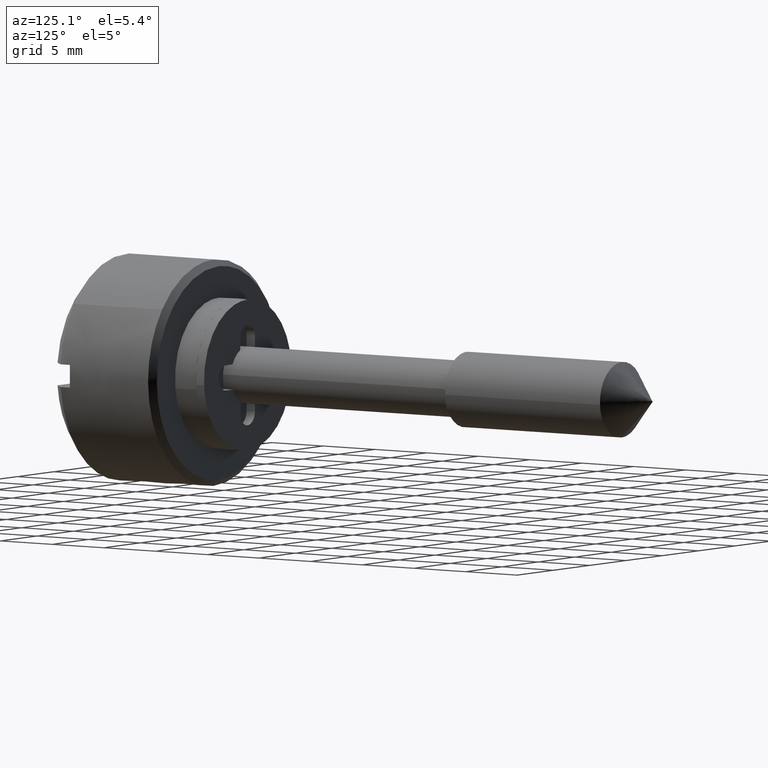
[diagram: clean part render]
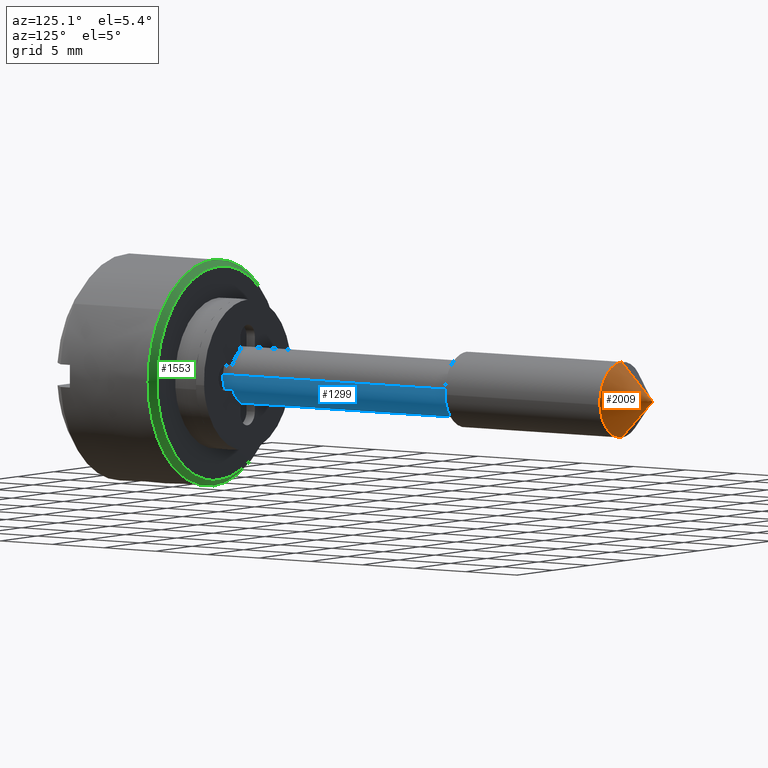
[diagram: same view with three faces highlighted in distinct colors, each labeled with its STEP entity id]
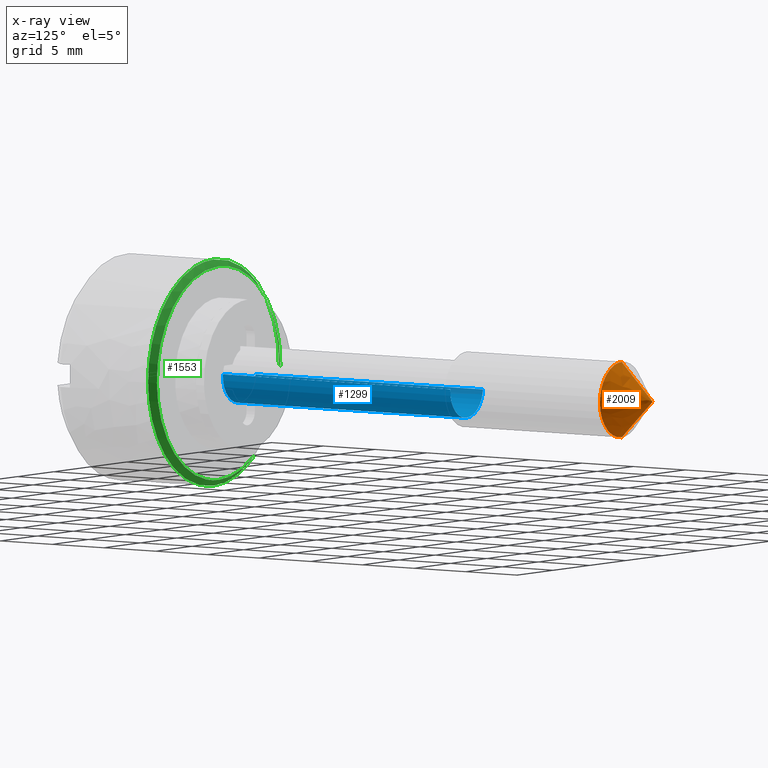
[diagram: x-ray of the same camera — body ghosted, the three highlighted faces saturated]
A machine part, auxiliary view with three faces highlighted in distinct colors.
The next image is the same camera in x-ray (body ghosted, the three faces saturated) — at least one of them is partly hidden behind the body in this view.
Their STEP definitions:

[orange] entity #2009 — the highlighted face is a freeform B-spline surface patch.
#1039=CARTESIAN_POINT('',(37.000000000000043,0.0,-3.000000000000032));
#1040=VERTEX_POINT('',#1039);
#1056=CARTESIAN_POINT('',(37.0,-2.994404395263399,-0.183145618640563));
#1057=VERTEX_POINT('',#1056);
#1058=CARTESIAN_POINT('',(37.0,0.0,-3.0));
#1059=CARTESIAN_POINT('',(37.000000000000007,-2.822118200649117,-3.000000000000000));
#1060=CARTESIAN_POINT('',(37.0,-2.994404395263400,-0.183145618640563));
#1068=(BOUNDED_CURVE()B_SPLINE_CURVE(2,(#1058,#1059,#1060),.UNSPECIFIED.,.F.,.U.)B_SPLINE_CURVE_WITH_KNOTS((3,3),(0.0,0.478665924475641),.UNSPECIFIED.)CURVE()GEOMETRIC_REPRESENTATION_ITEM()RATIONAL_B_SPLINE_CURVE((1.0,0.719603993288025,0.976072041664312))REPRESENTATION_ITEM(''));
#1069=EDGE_CURVE('',#1040,#1057,#1068,.T.);
#1136=CARTESIAN_POINT('',(37.000000000000043,0.0,3.000000000000032));
#1137=VERTEX_POINT('',#1136);
#1183=CARTESIAN_POINT('',(37.0,-2.994404395263399,-0.183145618640563));
#1184=CARTESIAN_POINT('',(36.999999999999993,-3.000000000000000,-0.091658289931860));
#1185=CARTESIAN_POINT('',(37.0,-3.0,0.0));
#1186=CARTESIAN_POINT('',(37.0,-3.0,3.0));
#1187=CARTESIAN_POINT('',(37.0,0.0,3.0));
#1195=(BOUNDED_CURVE()B_SPLINE_CURVE(2,(#1183,#1184,#1185,#1186,#1187),.UNSPECIFIED.,.F.,.U.)B_SPLINE_CURVE_WITH_KNOTS((3,2,3),(0.478665924475641,0.500000000000000,1.0),.UNSPECIFIED.)CURVE()GEOMETRIC_REPRESENTATION_ITEM()RATIONAL_B_SPLINE_CURVE((0.976072041664312,0.987502787898522,1.0,0.707106781186548,1.0))REPRESENTATION_ITEM(''));
#1196=EDGE_CURVE('',#1057,#1137,#1195,.T.);
#1975=CARTESIAN_POINT('',(40.0,0.0,0.0));
#1976=CARTESIAN_POINT('',(36.923124999999992,0.080543197824797,3.075820631784373));
#1977=CARTESIAN_POINT('',(40.0,0.0,0.0));
#1978=CARTESIAN_POINT('',(36.923124999999999,-3.160695452878708,3.160695452878717));
#1979=CARTESIAN_POINT('',(40.0,0.0,0.0));
#1980=CARTESIAN_POINT('',(36.923124999999992,-3.075820631784374,-0.080543197824788));
#1981=CARTESIAN_POINT('',(40.0,0.0,0.0));
#1982=CARTESIAN_POINT('',(36.923124999999999,-2.990945810690039,-3.321781848528294));
#1983=CARTESIAN_POINT('',(40.0,0.0,0.0));
#1984=CARTESIAN_POINT('',(36.923124999999992,0.241408830167624,-3.067390021230324));
#1992=(BOUNDED_SURFACE()B_SPLINE_SURFACE(1,2,((#1975,#1977,#1979,#1981,#1983),(#1976,#1978,#1980,#1982,#1984)),.UNSPECIFIED.,.F.,.F.,.U.)B_SPLINE_SURFACE_WITH_KNOTS((2,2),(3,2,3),(0.0,1.0),(0.0,1.0,2.0),.UNSPECIFIED.)GEOMETRIC_REPRESENTATION_ITEM()RATIONAL_B_SPLINE_SURFACE(((1.0,0.688354575693754,1.0,0.688354575693754,1.0),(1.0,0.688354575693754,1.0,0.688354575693754,1.0)))REPRESENTATION_ITEM('')SURFACE());
#1993=CARTESIAN_POINT('',(40.0,0.0,0.0));
#1994=VERTEX_POINT('',#1993);
#1995=CARTESIAN_POINT('',(40.0,0.0,0.0));
#1996=CARTESIAN_POINT('',(37.000000000000043,0.0,3.000000000000032));
#1997=QUASI_UNIFORM_CURVE('',1,(#1995,#1996),.UNSPECIFIED.,.F.,.U.);
#1998=EDGE_CURVE('',#1994,#1137,#1997,.T.);
#1999=ORIENTED_EDGE('',*,*,#1998,.T.);
#2000=ORIENTED_EDGE('',*,*,#1196,.F.);
#2001=ORIENTED_EDGE('',*,*,#1069,.F.);
#2002=CARTESIAN_POINT('',(40.0,0.0,0.0));
#2003=CARTESIAN_POINT('',(37.000000000000043,0.0,-3.000000000000032));
#2004=QUASI_UNIFORM_CURVE('',1,(#2002,#2003),.UNSPECIFIED.,.F.,.U.);
#2005=EDGE_CURVE('',#1994,#1040,#2004,.T.);
#2006=ORIENTED_EDGE('',*,*,#2005,.F.);
#2007=EDGE_LOOP('',(#1999,#2000,#2001,#2006));
#2008=FACE_OUTER_BOUND('',#2007,.T.);
#2009=ADVANCED_FACE('',(#2008),#1992,.T.);

[blue] entity #1299 — the highlighted face is a freeform B-spline surface patch.
#1201=CARTESIAN_POINT('',(22.550000000000001,2.243064000899537,-0.176532965387653));
#1202=CARTESIAN_POINT('',(22.550000000000004,2.066531035511885,-2.419596966287189));
#1203=CARTESIAN_POINT('',(22.550000000000001,-0.176532965387653,-2.243064000899537));
#1204=CARTESIAN_POINT('',(22.550000000000004,-2.419596966287189,-2.066531035511885));
#1205=CARTESIAN_POINT('',(22.550000000000001,-2.243064000899537,0.176532965387653));
#1206=CARTESIAN_POINT('',(-0.563749999999999,2.243064000899537,-0.176532965387653));
#1207=CARTESIAN_POINT('',(-0.563749999999999,2.066531035511885,-2.419596966287189));
#1208=CARTESIAN_POINT('',(-0.563749999999999,-0.176532965387653,-2.243064000899537));
#1209=CARTESIAN_POINT('',(-0.563749999999999,-2.419596966287189,-2.066531035511885));
#1210=CARTESIAN_POINT('',(-0.563749999999999,-2.243064000899537,0.176532965387653));
#1218=(BOUNDED_SURFACE()B_SPLINE_SURFACE(2,1,((#1201,#1206),(#1202,#1207),(#1203,#1208),(#1204,#1209),(#1205,#1210)),.UNSPECIFIED.,.F.,.F.,.U.)B_SPLINE_SURFACE_WITH_KNOTS((3,2,3),(2,2),(0.0,3.727922061357853,7.455844122715707),(0.0,23.113750000000000),.UNSPECIFIED.)GEOMETRIC_REPRESENTATION_ITEM()RATIONAL_B_SPLINE_SURFACE(((1.0,1.0),(0.707106781186548,0.707106781186548),(1.0,1.0),(0.707106781186548,0.707106781186548),(1.0,1.0)))REPRESENTATION_ITEM('')SURFACE());
#1219=CARTESIAN_POINT('',(22.0,0.0,-2.250000000000000));
#1220=VERTEX_POINT('',#1219);
#1221=CARTESIAN_POINT('',(22.0,2.243064000891777,-0.176532965486256));
#1222=VERTEX_POINT('',#1221);
#1223=CARTESIAN_POINT('',(22.0,0.0,-2.250000000000000));
#1224=CARTESIAN_POINT('',(22.0,2.079878606047539,-2.250000000000000));
#1225=CARTESIAN_POINT('',(22.0,2.243064000891776,-0.176532965486256));
#1233=(BOUNDED_CURVE()B_SPLINE_CURVE(2,(#1223,#1224,#1225),.UNSPECIFIED.,.F.,.U.)B_SPLINE_CURVE_WITH_KNOTS((3,3),(0.0,0.236331300617695),.UNSPECIFIED.)CURVE()GEOMETRIC_REPRESENTATION_ITEM()RATIONAL_B_SPLINE_CURVE((1.0,0.723120658622854,0.969723356140362))REPRESENTATION_ITEM(''));
#1234=EDGE_CURVE('',#1220,#1222,#1233,.T.);
#1235=ORIENTED_EDGE('',*,*,#1234,.F.);
#1236=CARTESIAN_POINT('',(22.0,-2.243064000891777,0.176532965486256));
#1237=VERTEX_POINT('',#1236);
#1238=CARTESIAN_POINT('',(22.0,-2.243064000891776,0.176532965486256));
#1239=CARTESIAN_POINT('',(21.999999999999996,-2.250000000000000,0.088402740866319));
#1240=CARTESIAN_POINT('',(22.0,-2.250000000000000,0.0));
#1241=CARTESIAN_POINT('',(21.999999999999993,-2.250000000000000,-2.250000000000000));
#1242=CARTESIAN_POINT('',(22.0,0.0,-2.250000000000000));
#1250=(BOUNDED_CURVE()B_SPLINE_CURVE(2,(#1238,#1239,#1240,#1241,#1242),.UNSPECIFIED.,.F.,.U.)B_SPLINE_CURVE_WITH_KNOTS((3,2,3),(0.736331300617695,0.750000000000000,1.0),.UNSPECIFIED.)CURVE()GEOMETRIC_REPRESENTATION_ITEM()RATIONAL_B_SPLINE_CURVE((0.969723356140362,0.983986122563693,1.0,0.707106781186547,1.0))REPRESENTATION_ITEM(''));
#1251=EDGE_CURVE('',#1237,#1220,#1250,.T.);
#1252=ORIENTED_EDGE('',*,*,#1251,.F.);
#1253=CARTESIAN_POINT('',(-4.440892E-016,-2.243064000891777,0.176532965486256));
#1254=VERTEX_POINT('',#1253);
#1255=CARTESIAN_POINT('',(22.0,-2.243064000891777,0.176532965486256));
#1256=CARTESIAN_POINT('',(-4.440892E-016,-2.243064000891777,0.176532965486256));
#1257=QUASI_UNIFORM_CURVE('',1,(#1255,#1256),.UNSPECIFIED.,.F.,.U.);
#1258=EDGE_CURVE('',#1237,#1254,#1257,.T.);
#1259=ORIENTED_EDGE('',*,*,#1258,.T.);
#1260=CARTESIAN_POINT('',(0.0,0.0,-2.250000000000000));
#1261=VERTEX_POINT('',#1260);
#1262=CARTESIAN_POINT('',(-4.440892E-016,-2.243064000891776,0.176532965486256));
#1263=CARTESIAN_POINT('',(0.0,-2.250000000000000,0.088402740866319));
#1264=CARTESIAN_POINT('',(0.0,-2.250000000000000,0.0));
#1265=CARTESIAN_POINT('',(0.0,-2.250000000000000,-2.250000000000000));
#1266=CARTESIAN_POINT('',(0.0,0.0,-2.250000000000000));
#1274=(BOUNDED_CURVE()B_SPLINE_CURVE(2,(#1262,#1263,#1264,#1265,#1266),.UNSPECIFIED.,.F.,.U.)B_SPLINE_CURVE_WITH_KNOTS((3,2,3),(0.736331300617695,0.750000000000000,1.0),.UNSPECIFIED.)CURVE()GEOMETRIC_REPRESENTATION_ITEM()RATIONAL_B_SPLINE_CURVE((0.969723356140362,0.983986122563693,1.0,0.707106781186547,1.0))REPRESENTATION_ITEM(''));
#1275=EDGE_CURVE('',#1254,#1261,#1274,.T.);
#1276=ORIENTED_EDGE('',*,*,#1275,.T.);
#1277=CARTESIAN_POINT('',(-4.440892E-016,2.243064000891777,-0.176532965486256));
#1278=VERTEX_POINT('',#1277);
#1279=CARTESIAN_POINT('',(0.0,0.0,-2.250000000000000));
#1280=CARTESIAN_POINT('',(0.0,2.079878606047539,-2.250000000000000));
#1281=CARTESIAN_POINT('',(-4.440892E-016,2.243064000891776,-0.176532965486256));
#1289=(BOUNDED_CURVE()B_SPLINE_CURVE(2,(#1279,#1280,#1281),.UNSPECIFIED.,.F.,.U.)B_SPLINE_CURVE_WITH_KNOTS((3,3),(0.0,0.236331300617695),.UNSPECIFIED.)CURVE()GEOMETRIC_REPRESENTATION_ITEM()RATIONAL_B_SPLINE_CURVE((1.0,0.723120658622854,0.969723356140362))REPRESENTATION_ITEM(''));
#1290=EDGE_CURVE('',#1261,#1278,#1289,.T.);
#1291=ORIENTED_EDGE('',*,*,#1290,.T.);
#1292=CARTESIAN_POINT('',(22.0,2.243064000891777,-0.176532965486256));
#1293=CARTESIAN_POINT('',(-4.440892E-016,2.243064000891777,-0.176532965486256));
#1294=QUASI_UNIFORM_CURVE('',1,(#1292,#1293),.UNSPECIFIED.,.F.,.U.);
#1295=EDGE_CURVE('',#1222,#1278,#1294,.T.);
#1296=ORIENTED_EDGE('',*,*,#1295,.F.);
#1297=EDGE_LOOP('',(#1235,#1252,#1259,#1276,#1291,#1296));
#1298=FACE_OUTER_BOUND('',#1297,.T.);
#1299=ADVANCED_FACE('',(#1298),#1218,.T.);

[green] entity #1553 — the highlighted face is a freeform B-spline surface patch.
#1383=CARTESIAN_POINT('',(-1.987500000000001,4.871694058989064,-6.950126131633201));
#1384=CARTESIAN_POINT('',(-1.987500000000001,2.645031824215980,-8.510906033331226));
#1385=CARTESIAN_POINT('',(-1.987500000000001,-0.074066470042448,-8.487176822007154));
#1386=CARTESIAN_POINT('',(-1.987500000000001,-8.561243292049602,-8.413110351964706));
#1387=CARTESIAN_POINT('',(-1.987500000000001,-8.487176822007154,0.074066470042448));
#1388=CARTESIAN_POINT('',(-1.987500000000001,-8.413110351964706,8.561243292049602));
#1389=CARTESIAN_POINT('',(-1.987500000000001,0.074066470042448,8.487176822007154));
#1390=CARTESIAN_POINT('',(-1.987500000000001,8.561243292049602,8.413110351964706));
#1391=CARTESIAN_POINT('',(-1.987500000000001,8.487176822007154,-0.074066470042448));
#1392=CARTESIAN_POINT('',(-2.512812499999944,5.173215329723990,-7.380286736466609));
#1393=CARTESIAN_POINT('',(-2.512812499999944,2.808739427180158,-9.037667190990643));
#1394=CARTESIAN_POINT('',(-2.512812499999944,-0.078650628221438,-9.012469319716800));
#1395=CARTESIAN_POINT('',(-2.512812499999944,-9.091119947938237,-8.933818691495363));
#1396=CARTESIAN_POINT('',(-2.512812499999944,-9.012469319716800,0.078650628221438));
#1397=CARTESIAN_POINT('',(-2.512812499999944,-8.933818691495363,9.091119947938237));
#1398=CARTESIAN_POINT('',(-2.512812499999944,0.078650628221438,9.012469319716800));
#1399=CARTESIAN_POINT('',(-2.512812499999944,9.091119947938237,8.933818691495363));
#1400=CARTESIAN_POINT('',(-2.512812499999944,9.012469319716800,-0.078650628221438));
#1408=(BOUNDED_SURFACE()B_SPLINE_SURFACE(2,1,((#1383,#1392),(#1384,#1393),(#1385,#1394),(#1386,#1395),(#1387,#1396),(#1388,#1397),(#1389,#1398),(#1390,#1399),(#1391,#1400)),.UNSPECIFIED.,.F.,.F.,.U.)B_SPLINE_SURFACE_WITH_KNOTS((3,2,2,2,3),(2,2),(0.0,5.973166676201216,20.906083366704259,35.839000057207294,50.771916747710343),(0.0,1.0),.UNSPECIFIED.)GEOMETRIC_REPRESENTATION_ITEM()RATIONAL_B_SPLINE_SURFACE(((0.859411254969543,0.859411254969543),(0.882842712474619,0.882842712474619),(1.0,1.0),(0.707106781186548,0.707106781186548),(1.0,1.0),(0.707106781186548,0.707106781186548),(1.0,1.0),(0.707106781186548,0.707106781186548),(1.0,1.0)))REPRESENTATION_ITEM('')SURFACE());
#1409=CARTESIAN_POINT('',(-2.500000000001037,5.165861152410700,-7.369795014383618));
#1410=VERTEX_POINT('',#1409);
#1411=CARTESIAN_POINT('',(-2.499999999999945,0.0,-9.0));
#1412=VERTEX_POINT('',#1411);
#1413=CARTESIAN_POINT('',(-2.500000000001037,5.165861152410700,-7.369795014383618));
#1414=CARTESIAN_POINT('',(-2.499999999999945,2.840154707561898,-9.000000000000002));
#1415=CARTESIAN_POINT('',(-2.499999999999945,0.0,-9.0));
#1423=(BOUNDED_CURVE()B_SPLINE_CURVE(2,(#1413,#1414,#1415),.UNSPECIFIED.,.F.,.U.)B_SPLINE_CURVE_WITH_KNOTS((3,3),(0.901326273796258,1.0),.UNSPECIFIED.)CURVE()GEOMETRIC_REPRESENTATION_ITEM()RATIONAL_B_SPLINE_CURVE((0.860049271925442,0.884396538879475,1.0))REPRESENTATION_ITEM(''));
#1424=EDGE_CURVE('',#1410,#1412,#1423,.T.);
#1425=ORIENTED_EDGE('',*,*,#1424,.F.);
#1426=CARTESIAN_POINT('',(-2.000000000001049,4.878868866166076,-6.960361958028705));
#1427=VERTEX_POINT('',#1426);
#1428=CARTESIAN_POINT('',(-2.000000000001049,4.878868866166076,-6.960361958028705));
#1429=CARTESIAN_POINT('',(-2.500000000001037,5.165861152410700,-7.369795014383618));
#1430=QUASI_UNIFORM_CURVE('',1,(#1428,#1429),.UNSPECIFIED.,.F.,.U.);
#1431=EDGE_CURVE('',#1427,#1410,#1430,.T.);
#1432=ORIENTED_EDGE('',*,*,#1431,.F.);
#1433=CARTESIAN_POINT('',(-2.0,0.0,-8.500000000000000));
#1434=VERTEX_POINT('',#1433);
#1435=CARTESIAN_POINT('',(-2.0,0.0,-8.500000000000000));
#1436=CARTESIAN_POINT('',(-2.000000000000000,2.682368334920112,-8.500000000000000));
#1437=CARTESIAN_POINT('',(-2.000000000001049,4.878868866166076,-6.960361958028705));
#1445=(BOUNDED_CURVE()B_SPLINE_CURVE(2,(#1435,#1436,#1437),.UNSPECIFIED.,.F.,.U.)B_SPLINE_CURVE_WITH_KNOTS((3,3),(0.0,0.098673726203760),.UNSPECIFIED.)CURVE()GEOMETRIC_REPRESENTATION_ITEM()RATIONAL_B_SPLINE_CURVE((1.0,0.884396538879454,0.860049271925434))REPRESENTATION_ITEM(''));
#1446=EDGE_CURVE('',#1434,#1427,#1445,.T.);
#1447=ORIENTED_EDGE('',*,*,#1446,.F.);
#1448=CARTESIAN_POINT('',(-2.0,0.0,8.500000000000000));
#1449=VERTEX_POINT('',#1448);
#1450=CARTESIAN_POINT('',(-2.0,0.0,8.500000000000000));
#1451=CARTESIAN_POINT('',(-2.000000000000000,-8.500000000000002,8.500000000000002));
#1452=CARTESIAN_POINT('',(-2.0,-8.500000000000000,0.0));
#1453=CARTESIAN_POINT('',(-2.000000000000000,-8.500000000000002,-8.500000000000002));
#1454=CARTESIAN_POINT('',(-2.0,0.0,-8.500000000000000));
#1462=(BOUNDED_CURVE()B_SPLINE_CURVE(2,(#1450,#1451,#1452,#1453,#1454),.UNSPECIFIED.,.F.,.U.)B_SPLINE_CURVE_WITH_KNOTS((3,2,3),(0.500000000000000,0.750000000000000,1.0),.UNSPECIFIED.)CURVE()GEOMETRIC_REPRESENTATION_ITEM()RATIONAL_B_SPLINE_CURVE((1.0,0.707106781186548,1.0,0.707106781186548,1.0))REPRESENTATION_ITEM(''));
#1463=EDGE_CURVE('',#1449,#1434,#1462,.T.);
#1464=ORIENTED_EDGE('',*,*,#1463,.F.);
#1465=CARTESIAN_POINT('',(-1.999999692558788,8.499676040795693,-0.074175299278635));
#1466=VERTEX_POINT('',#1465);
#1467=CARTESIAN_POINT('',(-1.999999692558788,8.499676040795693,-0.074175299278635));
#1468=CARTESIAN_POINT('',(-2.0,8.499999999999998,-0.037088232187051));
#1469=CARTESIAN_POINT('',(-2.0,8.500000000000000,0.0));
#1470=CARTESIAN_POINT('',(-2.000000000000000,8.500000000000002,8.500000000000002));
#1471=CARTESIAN_POINT('',(-2.0,0.0,8.500000000000000));
#1479=(BOUNDED_CURVE()B_SPLINE_CURVE(2,(#1467,#1468,#1469,#1470,#1471),.UNSPECIFIED.,.F.,.U.)B_SPLINE_CURVE_WITH_KNOTS((3,2,3),(0.248460116017407,0.250000000000000,0.500000000000000),.UNSPECIFIED.)CURVE()GEOMETRIC_REPRESENTATION_ITEM()RATIONAL_B_SPLINE_CURVE((0.996414052058748,0.998195913694957,1.0,0.707106781186548,1.0))REPRESENTATION_ITEM(''));
#1480=EDGE_CURVE('',#1466,#1449,#1479,.T.);
#1481=ORIENTED_EDGE('',*,*,#1480,.F.);
#1482=CARTESIAN_POINT('',(-2.500000000001829,8.999657307579305,-0.078538819499149));
#1483=VERTEX_POINT('',#1482);
#1484=CARTESIAN_POINT('',(-1.999999692558788,8.499676040795693,-0.074175299278635));
#1485=CARTESIAN_POINT('',(-2.500000000001829,8.999657307579305,-0.078538819499149));
#1486=QUASI_UNIFORM_CURVE('',1,(#1484,#1485),.UNSPECIFIED.,.F.,.U.);
#1487=EDGE_CURVE('',#1466,#1483,#1486,.T.);
#1488=ORIENTED_EDGE('',*,*,#1487,.T.);
#1489=CARTESIAN_POINT('',(-2.499999999999944,5.963579269917588,6.740602516942143));
#1490=VERTEX_POINT('',#1489);
#1491=CARTESIAN_POINT('',(-2.499999999999944,5.963579269917588,6.740602516942142));
#1492=CARTESIAN_POINT('',(-2.499999999999946,9.0,4.054205318004370));
#1493=CARTESIAN_POINT('',(-2.499999999999945,9.0,0.0));
#1494=CARTESIAN_POINT('',(-2.499999999999945,8.999999999999998,-0.039270157400074));
#1495=CARTESIAN_POINT('',(-2.500000000001828,8.999657307579305,-0.078538819499149));
#1503=(BOUNDED_CURVE()B_SPLINE_CURVE(2,(#1491,#1492,#1493,#1494,#1495),.UNSPECIFIED.,.F.,.U.)B_SPLINE_CURVE_WITH_KNOTS((3,2,3),(0.615779861978577,0.750000000000000,0.751539894335526),.UNSPECIFIED.)CURVE()GEOMETRIC_REPRESENTATION_ITEM()RATIONAL_B_SPLINE_CURVE((0.854350162732624,0.842751326981278,1.0,0.998195901565741,0.996414028099159))REPRESENTATION_ITEM(''));
#1504=EDGE_CURVE('',#1490,#1483,#1503,.T.);
#1505=ORIENTED_EDGE('',*,*,#1504,.F.);
#1506=CARTESIAN_POINT('',(-2.499999999999945,0.0,9.0));
#1507=VERTEX_POINT('',#1506);
#1508=CARTESIAN_POINT('',(-2.499999999999945,0.0,9.0));
#1509=CARTESIAN_POINT('',(-2.499999999999945,3.409794089615664,9.000000000000002));
#1510=CARTESIAN_POINT('',(-2.499999999999944,5.963579269917588,6.740602516942142));
#1518=(BOUNDED_CURVE()B_SPLINE_CURVE(2,(#1508,#1509,#1510),.UNSPECIFIED.,.F.,.U.)B_SPLINE_CURVE_WITH_KNOTS((3,3),(0.500000000000000,0.615779861978577),.UNSPECIFIED.)CURVE()GEOMETRIC_REPRESENTATION_ITEM()RATIONAL_B_SPLINE_CURVE((1.0,0.864355454205269,0.854350162732624))REPRESENTATION_ITEM(''));
#1519=EDGE_CURVE('',#1507,#1490,#1518,.T.);
#1520=ORIENTED_EDGE('',*,*,#1519,.F.);
#1521=CARTESIAN_POINT('',(-2.499999999999944,-7.070639771251634,5.568307931965846));
#1522=VERTEX_POINT('',#1521);
#1523=CARTESIAN_POINT('',(-2.499999999999944,-7.070639771251636,5.568307931965846));
#1524=CARTESIAN_POINT('',(-2.499999999999945,-4.368095908588074,9.0));
#1525=CARTESIAN_POINT('',(-2.499999999999945,0.0,9.0));
#1533=(BOUNDED_CURVE()B_SPLINE_CURVE(2,(#1523,#1524,#1525),.UNSPECIFIED.,.F.,.U.)B_SPLINE_CURVE_WITH_KNOTS((3,3),(0.357127509740917,0.500000000000000),.UNSPECIFIED.)CURVE()GEOMETRIC_REPRESENTATION_ITEM()RATIONAL_B_SPLINE_CURVE((0.856547236429575,0.832614465792494,1.0))REPRESENTATION_ITEM(''));
#1534=EDGE_CURVE('',#1522,#1507,#1533,.T.);
#1535=ORIENTED_EDGE('',*,*,#1534,.F.);
#1536=CARTESIAN_POINT('',(-2.499999999999945,0.0,-9.0));
#1537=CARTESIAN_POINT('',(-2.499999999999945,-9.0,-9.0));
#1538=CARTESIAN_POINT('',(-2.499999999999945,-9.0,0.0));
#1539=CARTESIAN_POINT('',(-2.499999999999945,-9.0,3.118404977624842));
#1540=CARTESIAN_POINT('',(-2.499999999999944,-7.070639771251636,5.568307931965846));
#1548=(BOUNDED_CURVE()B_SPLINE_CURVE(2,(#1536,#1537,#1538,#1539,#1540),.UNSPECIFIED.,.F.,.U.)B_SPLINE_CURVE_WITH_KNOTS((3,2,3),(0.0,0.250000000000000,0.357127509740917),.UNSPECIFIED.)CURVE()GEOMETRIC_REPRESENTATION_ITEM()RATIONAL_B_SPLINE_CURVE((1.0,0.707106781186547,1.0,0.874492315394053,0.856547236429575))REPRESENTATION_ITEM(''));
#1549=EDGE_CURVE('',#1412,#1522,#1548,.T.);
#1550=ORIENTED_EDGE('',*,*,#1549,.F.);
#1551=EDGE_LOOP('',(#1425,#1432,#1447,#1464,#1481,#1488,#1505,#1520,#1535,#1550));
#1552=FACE_OUTER_BOUND('',#1551,.T.);
#1553=ADVANCED_FACE('',(#1552),#1408,.T.);